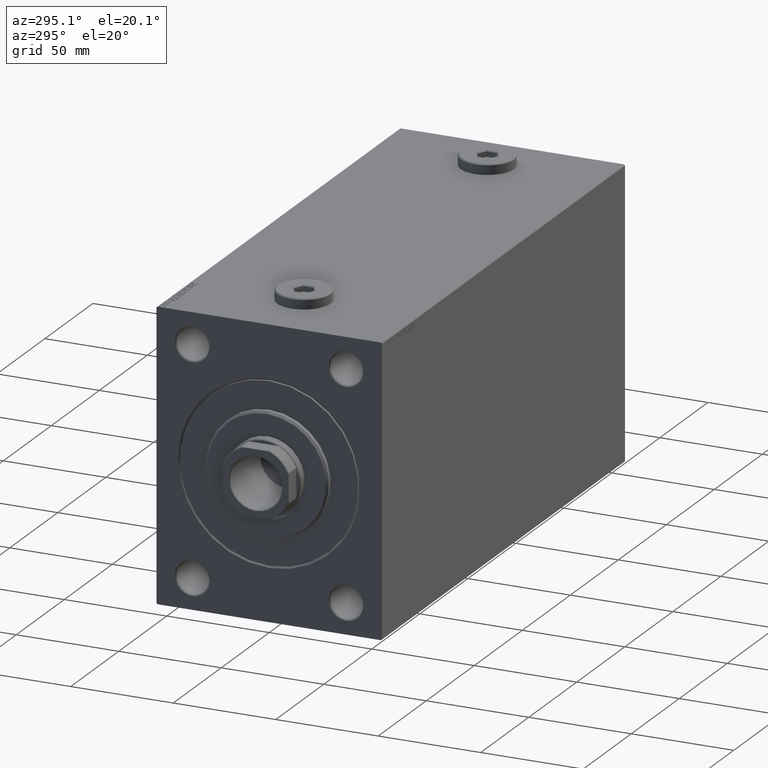
[diagram: clean part render]
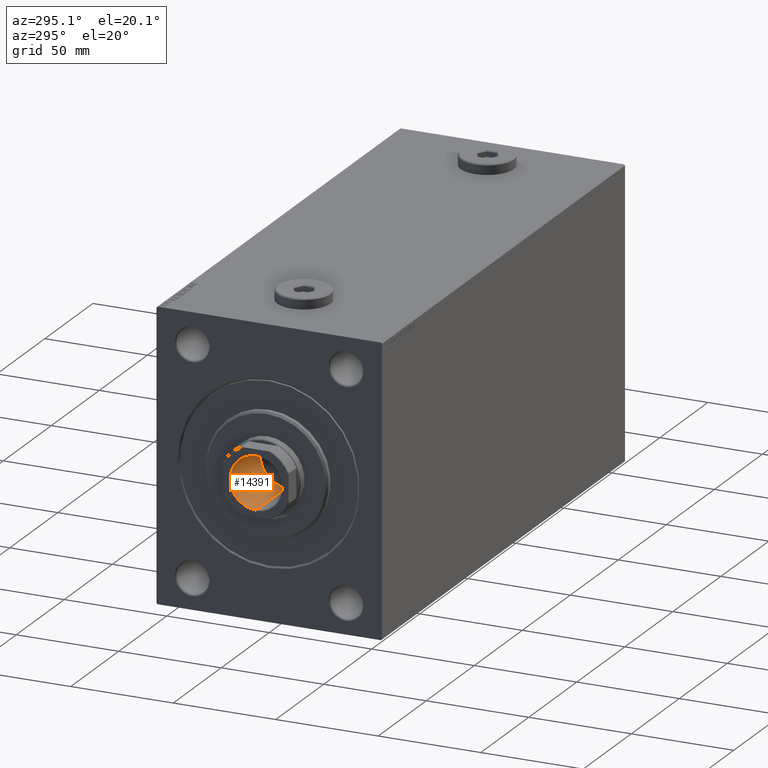
[diagram: same view with one face highlighted and labeled with its STEP entity id]
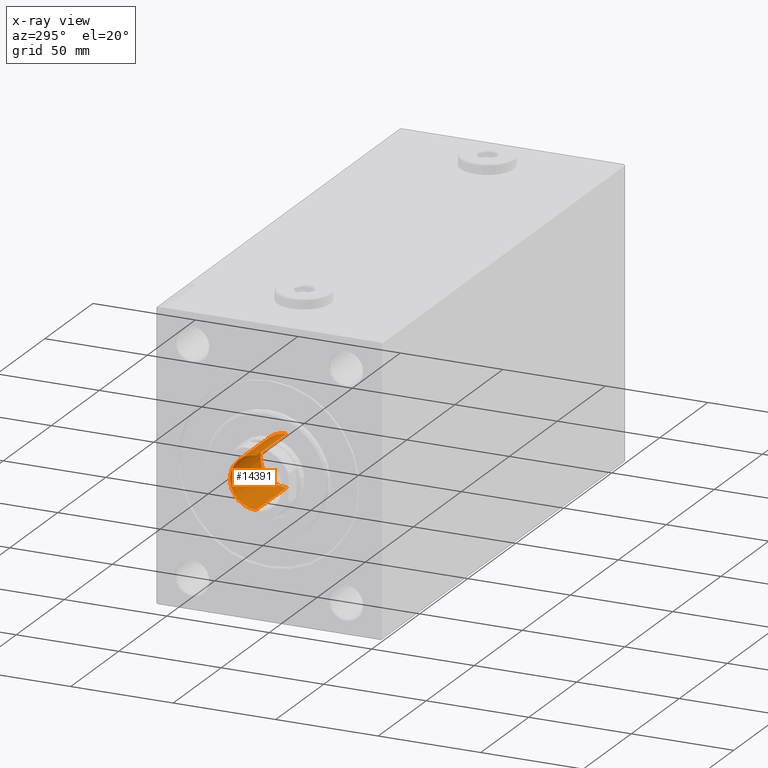
[diagram: x-ray of the same camera — body ghosted, the highlighted face saturated]
A machine part, auxiliary view. The second image highlights one B-rep face of the part: STEP entity #14391.
The next image is the same camera in x-ray: the body ghosted, the highlighted face saturated — about 0% of this face is hidden behind the body in this view.
In plain terms, the highlighted cylindrical surface (edge-blend (fillet) strip) has radius 12.75 mm, axis along (-1, 0, 0).
Its self-contained STEP definition (entity closure, byte-faithful):
#689 = DIRECTION ( 'NONE',  ( -0.000000000000000000, -0.000000000000000000, 1.000000000000000000 ) ) ;
#726 = DIRECTION ( 'NONE',  ( 0.000000000000000000, 0.000000000000000000, 1.000000000000000000 ) ) ;
#971 = ORIENTED_EDGE ( 'NONE', *, *, #2660, .F. ) ;
#1232 = ORIENTED_EDGE ( 'NONE', *, *, #19437, .T. ) ;
#1607 = EDGE_LOOP ( 'NONE', ( #971, #14205, #39058, #1232 ) ) ;
#2660 = EDGE_CURVE ( 'NONE', #23519, #12978, #14578, .T. ) ;
#2758 = CARTESIAN_POINT ( 'NONE',  ( -12.74999999999999645, 1.561424668912874717E-15, 245.6999999999999886 ) ) ;
#3721 = CARTESIAN_POINT ( 'NONE',  ( -12.74999999999999645, 1.561424668912874717E-15, 246.0000000000000000 ) ) ;
#3961 = CARTESIAN_POINT ( 'NONE',  ( 0.000000000000000000, 0.000000000000000000, 245.6999999999999886 ) ) ;
#4593 = CARTESIAN_POINT ( 'NONE',  ( 0.000000000000000000, 0.000000000000000000, 214.0000000000000000 ) ) ;
#4636 = DIRECTION ( 'NONE',  ( 1.000000000000000000, 0.000000000000000000, 0.000000000000000000 ) ) ;
#5499 = CIRCLE ( 'NONE', #44637, 12.74999999999999645 ) ;
#6249 = CARTESIAN_POINT ( 'NONE',  ( 12.74999999999999645, 0.000000000000000000, 246.0000000000000000 ) ) ;
#7317 = EDGE_CURVE ( 'NONE', #40188, #36379, #37908, .T. ) ;
#10804 = DIRECTION ( 'NONE',  ( -0.000000000000000000, -0.000000000000000000, 1.000000000000000000 ) ) ;
#12300 = VECTOR ( 'NONE', #24228, 1000.000000000000000 ) ;
#12978 = VERTEX_POINT ( 'NONE', #2758 ) ;
#14205 = ORIENTED_EDGE ( 'NONE', *, *, #20483, .F. ) ;
#14391 = ADVANCED_FACE ( 'NONE', ( #17951 ), #21411, .F. ) ;
#14578 = LINE ( 'NONE', #3721, #29092 ) ;
#16236 = CARTESIAN_POINT ( 'NONE',  ( 12.74999999999999467, 0.000000000000000000, 214.0000000000000000 ) ) ;
#16625 = CIRCLE ( 'NONE', #22490, 12.74999999999999467 ) ;
#17729 = DIRECTION ( 'NONE',  ( 1.000000000000000000, 0.000000000000000000, 0.000000000000000000 ) ) ;
#17951 = FACE_OUTER_BOUND ( 'NONE', #1607, .T. ) ;
#19005 = CARTESIAN_POINT ( 'NONE',  ( 12.74999999999999645, 0.000000000000000000, 245.6999999999999886 ) ) ;
#19437 = EDGE_CURVE ( 'NONE', #36379, #12978, #5499, .T. ) ;
#20483 = EDGE_CURVE ( 'NONE', #40188, #23519, #16625, .T. ) ;
#21411 = CYLINDRICAL_SURFACE ( 'NONE', #23061, 12.74999999999999645 ) ;
#22490 = AXIS2_PLACEMENT_3D ( 'NONE', #4593, #689, #42968 ) ;
#23061 = AXIS2_PLACEMENT_3D ( 'NONE', #28797, #10804, #17729 ) ;
#23519 = VERTEX_POINT ( 'NONE', #27598 ) ;
#24228 = DIRECTION ( 'NONE',  ( -0.000000000000000000, -0.000000000000000000, 1.000000000000000000 ) ) ;
#27598 = CARTESIAN_POINT ( 'NONE',  ( -12.74999999999999467, 1.561424668912874519E-15, 214.0000000000000000 ) ) ;
#27751 = DIRECTION ( 'NONE',  ( -0.000000000000000000, -0.000000000000000000, 1.000000000000000000 ) ) ;
#28797 = CARTESIAN_POINT ( 'NONE',  ( 0.000000000000000000, 0.000000000000000000, 246.0000000000000000 ) ) ;
#29092 = VECTOR ( 'NONE', #27751, 1000.000000000000000 ) ;
#36379 = VERTEX_POINT ( 'NONE', #19005 ) ;
#37908 = LINE ( 'NONE', #6249, #12300 ) ;
#39058 = ORIENTED_EDGE ( 'NONE', *, *, #7317, .T. ) ;
#40188 = VERTEX_POINT ( 'NONE', #16236 ) ;
#42968 = DIRECTION ( 'NONE',  ( 1.000000000000000000, 0.000000000000000000, 0.000000000000000000 ) ) ;
#44637 = AXIS2_PLACEMENT_3D ( 'NONE', #3961, #726, #4636 ) ;